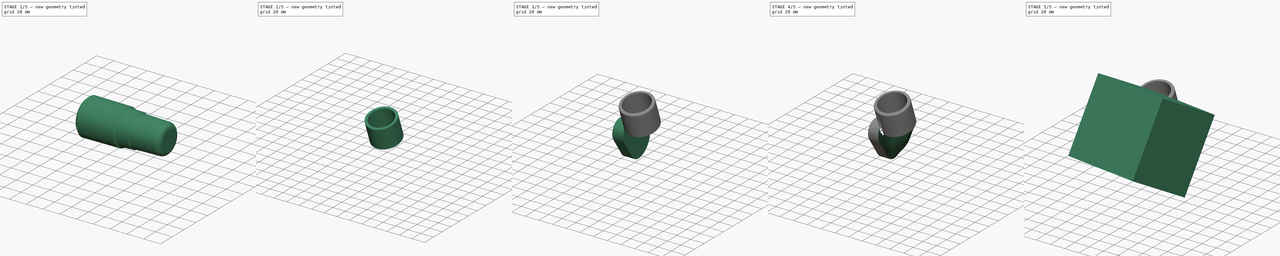
[diagram: build sequence overview — one tinted view per stage of 5, left to right]
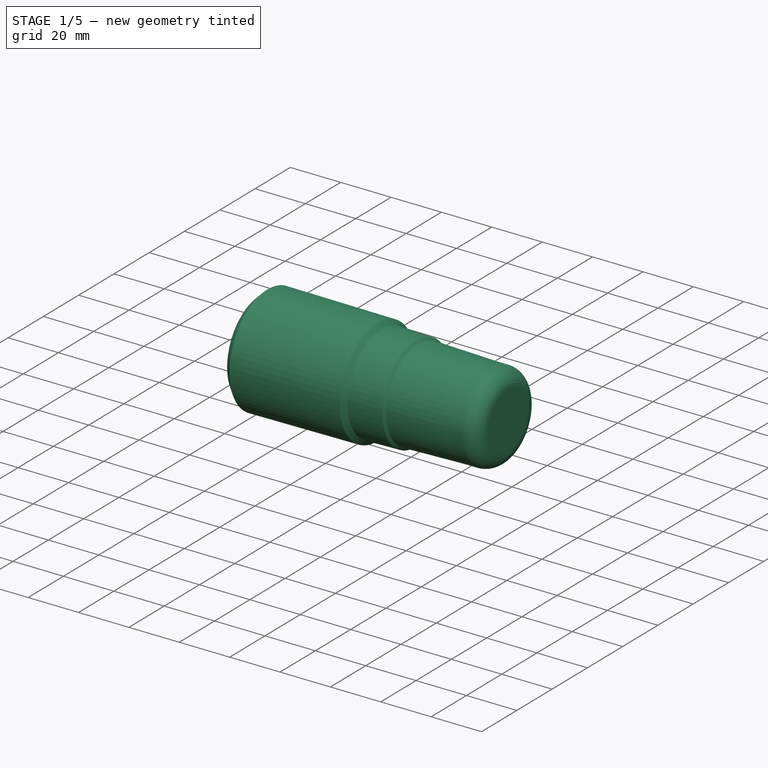
[diagram: stage 1 of 5 — iso view after this stage's code; geometry added in this stage tinted green]
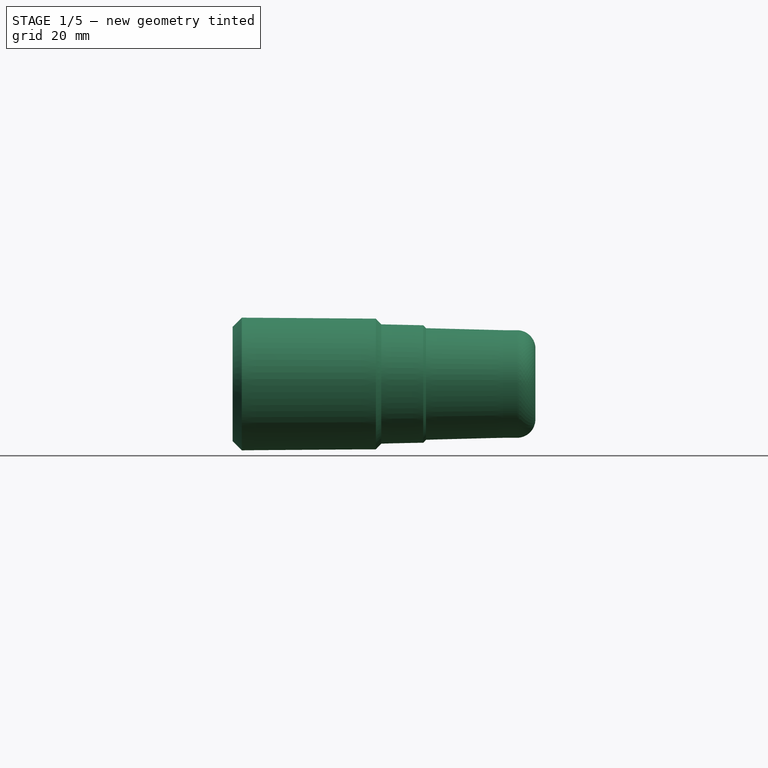
[diagram: stage 1 of 5 — front view after this stage's code; geometry added in this stage tinted green]
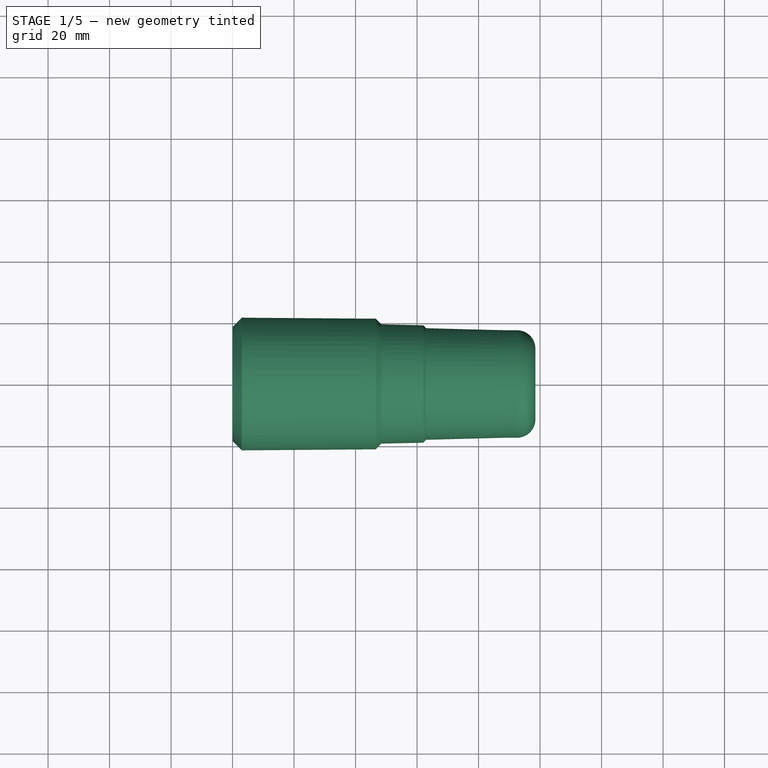
[diagram: stage 1 of 5 — top view after this stage's code; geometry added in this stage tinted green]
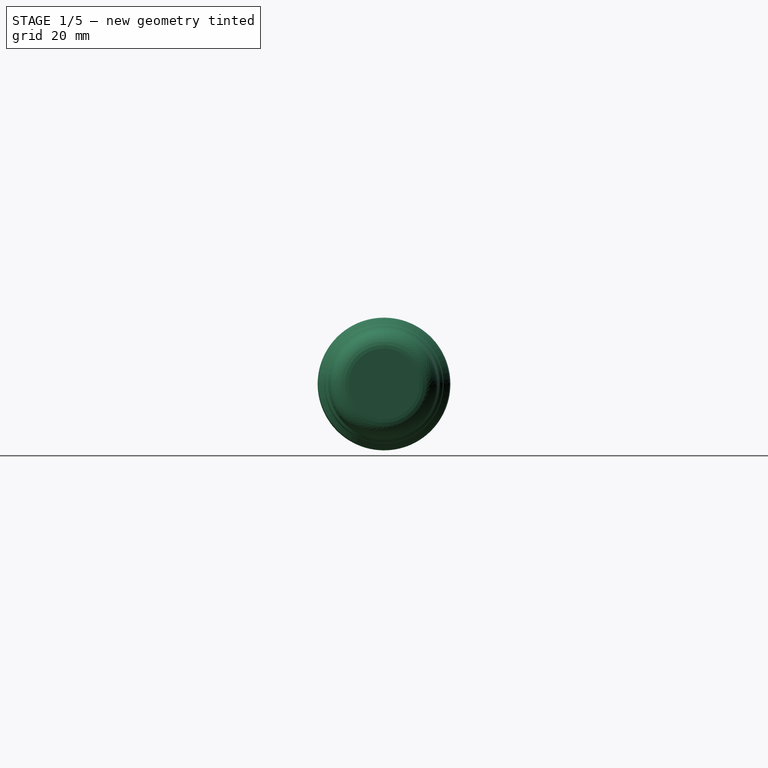
[diagram: stage 1 of 5 — right view after this stage's code; geometry added in this stage tinted green]
FCSTD DOCUMENT  (FreeCAD 0.19R)
Label: PowerPlaneAdapter
License: Creative Commons Attribution-NonCommercial
LicenseURL: http://creativecommons.org/licenses/by-nc/4.0/
objects: Sketcher::SketchObject×26, Surface::Filling×24, Part::Cut×4, App::DocumentObjectGroup×4, Part::Sweep×3, PartDesign::Body×3, Part::Extrusion×2, Part::FeaturePython×2, Part::Fillet×2, PartDesign::Plane×1, Part::Offset2D×1, PartDesign::Revolution×1, PartDesign::Chamfer×1, Part::Compound×1, Part::Offset×1, Part::Box×1, Part::Refine×1, Part::Fuse×1, Part::MultiFuse×1, PartDesign::FeatureBase×1, +1 more types
note: 80 computed .brp shape members not serialized (recipe doc carries the construction recipe); baked Part::Feature solids carry a one-line shape summary decoded from their .brp

FEATURE [Part::Offset2D] Offset2D001
  Fill = false
  Intersection = false
  Join = 0
  Mode = 1
  SelfIntersection = false
  Source = -> Sketch004
  Value = -4
FEATURE [Part::Sweep] Sweep  label="DuctKnockout"
  Frenet = false
  Sections = -> [Offset2D001,Sketch]
  Solid = true
  Spine = -> Sketch003 [Edge1]
  Transition = 1
FEATURE [Sketcher::SketchObject] Sketch006  label="PlaneOutletOffset001"
  FullyConstrained = false
  Placement = pos=(0,0,0) rot=(0.57735,0.57735,0.57735;2.0944rad)
  sketch-geometry (6):
    g0: ArcOfCircle CenterX=12.0935 CenterY=36.2169 CenterZ=0 NormalX=0 NormalY=0 NormalZ=1 AngleXU=0 Radius=15.8794 StartAngle=1.2916 EndAngle=3.73589
    g1: LineSegment StartX=16.4697 StartY=51.4814 StartZ=0 EndX=33.5567 EndY=46.5827 EndZ=0
    g2: ArcOfCircle CenterX=28.4258 CenterY=11.7277 CenterZ=0 NormalX=0 NormalY=0 NormalZ=1 AngleXU=0 Radius=15.6991 StartAngle=3.73589 EndAngle=4.91023
    g3: LineSegment StartX=15.4185 StartY=2.93727 StartZ=0 EndX=-1.06323 EndY=27.3255 EndZ=0
    g4: ArcOfCircle CenterX=26.4252 CenterY=21.7074 CenterZ=0 NormalX=0 NormalY=0 NormalZ=1 AngleXU=0 Radius=25.8774 StartAngle=6.21858 EndAngle=7.57478
    g5: ArcOfCircle CenterX=26.4252 CenterY=21.7074 CenterZ=0 NormalX=0 NormalY=0 NormalZ=1 AngleXU=0 Radius=25.8774 StartAngle=4.91023 EndAngle=6.21858
  constraints (15):
    c: DistanceX(g0) = 12.0935
    c: DistanceY(g0) = 36.2169
    c: DistanceX(g2) = 28.4258
    c: DistanceY(g2) = 11.7277
    c: Tangent(g3,g2) = 1.5708
    c: Tangent(g3,g0) = 1.5708
    c: Tangent(g1,g0) = 1.5708
    c: DistanceX(g0) = 16.4697
    c: DistanceY(g0) = 51.4814
    c: DistanceX(g1) = 33.5567
    c: DistanceX(g0,g2) = 16.4817
    c: Coincident(g4,g1)
    c: Coincident(g5,g4)
    c: Coincident(g5,g2)
    c: Coincident(g5,g4)
FEATURE [PartDesign::Body] Body
  Group = -> [Sketch,Sketch001,Sketch002,Sketch003,DatumPlane,Sketch006]
  Origin = -> Origin
FEATURE [Part::Sweep] Sweep001
  Frenet = false
  Sections = -> [Sketch004,Sketch006]
  Solid = true
  Spine = -> Sketch003 [Edge1]
  Transition = 1
FEATURE [Part::Cut] Cut
  Base = -> Sweep001
  Tool = -> Sweep
FEATURE [Sketcher::SketchObject] Sketch007
  FullyConstrained = false
  MapMode = 5
  Placement = pos=(0,0,0) rot=(1,0,0;1.5708rad)
  Support = -> [XZ_Plane001]
  sketch-geometry (12):
    g0: LineSegment StartX=0 StartY=21.6 StartZ=0 EndX=46.5987 EndY=21.25 EndZ=0
    g1: LineSegment StartX=46.5987 StartY=21.25 StartZ=0 EndX=48.3691 EndY=19.4 EndZ=0
    g2: LineSegment StartX=48.3691 StartY=19.4 StartZ=0 EndX=62.0091 EndY=19.1 EndZ=0
    g3: LineSegment StartX=62.0091 StartY=19.1 StartZ=0 EndX=62.9111 EndY=18.15 EndZ=0
    g4: LineSegment StartX=62.9111 StartY=18.15 StartZ=0 EndX=87.989 EndY=17.5 EndZ=0
    g5: LineSegment StartX=98.5 StartY=0 StartZ=0 EndX=0 EndY=0 EndZ=0
    g6: LineSegment StartX=0 StartY=0 StartZ=0 EndX=0 EndY=21.6 EndZ=0
    g7: LineSegment StartX=46.5987 StartY=21.25 StartZ=0 EndX=48.3691 EndY=19.4 EndZ=0
    g8: LineSegment StartX=62.0091 StartY=19.1 StartZ=0 EndX=62.9111 EndY=18.15 EndZ=0
    g9: LineSegment StartX=87.989 StartY=17.5 StartZ=0 EndX=92.5 EndY=17.5 EndZ=0
    g10: ArcOfCircle CenterX=92.5 CenterY=11.5 CenterZ=0 NormalX=0 NormalY=0 NormalZ=1 AngleXU=0 Radius=6 StartAngle=1.66667e-07 EndAngle=1.5708
    g11: LineSegment StartX=98.5 StartY=11.5 StartZ=0 EndX=98.5 EndY=0 EndZ=0
  constraints (34):
    c: PointOnObject(g0,g-2)
    c: Coincident(g0,g1)
    c: Coincident(g1,g2)
    c: Coincident(g3,g4)
    c: Coincident(g5,g6)
    c: Coincident(g6,g0)
    c: PointOnObject(g5,g-2)
    c: Distance(g0) = 46.6
    c: Distance(g-1,g0) = 21.6
    c: DistanceY(g0) = 21.25
    c: DistanceY(g1) = 19.4
    c: DistanceY(g2) = 19.1
    c: DistanceY(g3) = 18.15
    c: DistanceY(g4) = 17.5
    c: Horizontal(g5)
    c: PointOnObject(g7,g0)
    c: PointOnObject(g7,g2)
    c: Angle(g2,g7) = 2.35619
    c: Distance(g5) = 98.5
    c: Angle(g4,g8) = 2.35619
    c: DistanceY(g1,g7) = 1.85
    c: Coincident(g2,g3)
    c: Coincident(g2,g8)
    c: DistanceX(g2,g2) = 13.64
    c: Coincident(g3,g8)
    c: Distance(g3) = 1.31
    c: Angle(g2,g1) = 2.35619
    c: Horizontal(g9)
    c: Tangent(g10,g9) = 1.5708
    c: PointOnObject(g5,g-1)
    c: Coincident(g11,g10)
    c: Coincident(g11,g5)
    c: Vertical(g11)
    c: Coincident(g4,g9)
FEATURE [PartDesign::Revolution] Revolution
  Angle = 360
  Axis = (1,0,0)
  Base = (0,0,0)
  Placement = pos=(0,0,0) rot=(1,0,0;1.5708rad)
  Profile = -> Sketch007
  ReferenceAxis = -> X_Axis001
FEATURE [PartDesign::Chamfer] Chamfer
  Angle = 45
  Base = -> Revolution [Edge2]
  BaseFeature = -> Revolution
  ChamferType = 0
  FlipDirection = false
  Placement = pos=(0,0,0) rot=(1,0,0;1.5708rad)
  Size = 3
  Size2 = 1
  SupportTransform = false
FEATURE [PartDesign::Body] Body001  label="Nozzle"
  Group = -> [Sketch007,Revolution,Chamfer]
  Origin = -> Origin001
  Tip = -> Chamfer
FEATURE [Part::Compound] Compound
  Links = -> [Body001]
  Placement = pos=(5.8e-15,0,0) rot=(0,0,1;0rad)
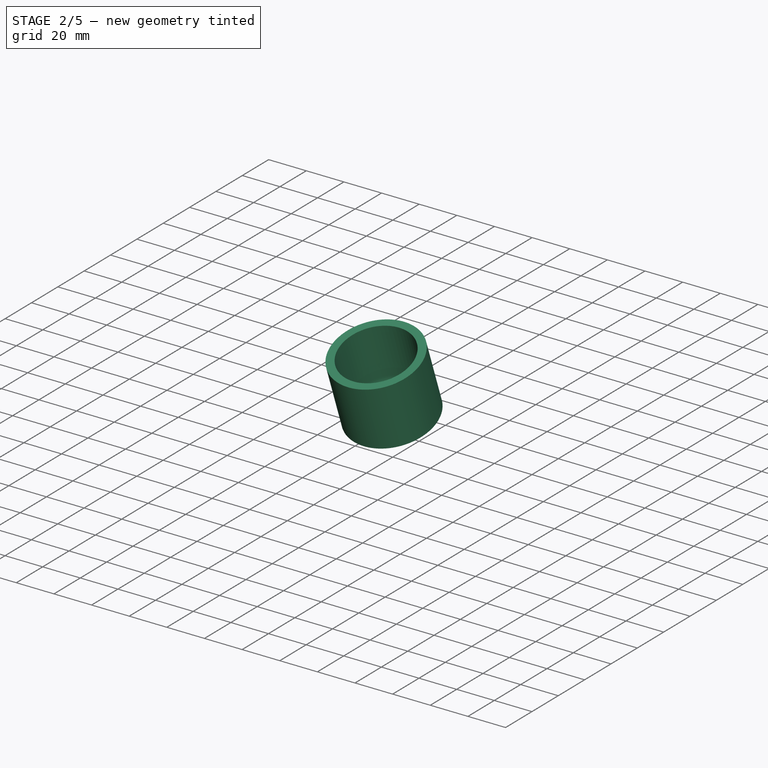
[diagram: stage 2 of 5 — iso view after this stage's code; geometry added in this stage tinted green]
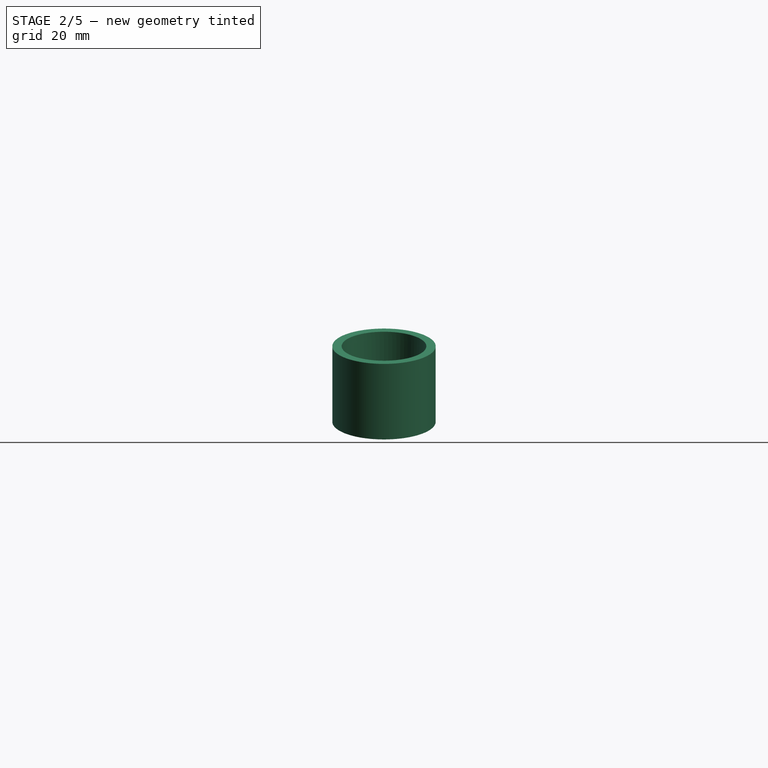
[diagram: stage 2 of 5 — front view after this stage's code; geometry added in this stage tinted green]
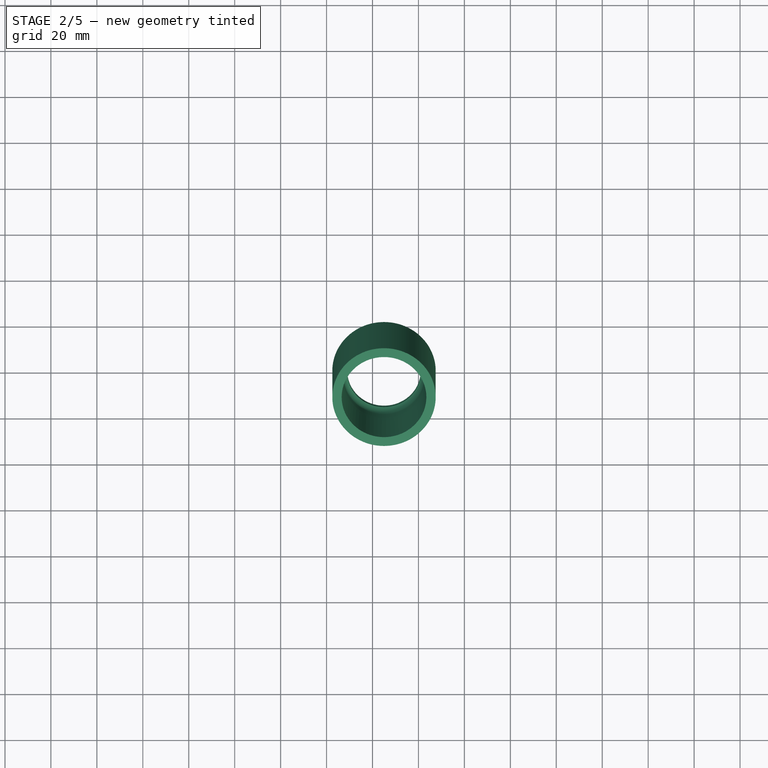
[diagram: stage 2 of 5 — top view after this stage's code; geometry added in this stage tinted green]
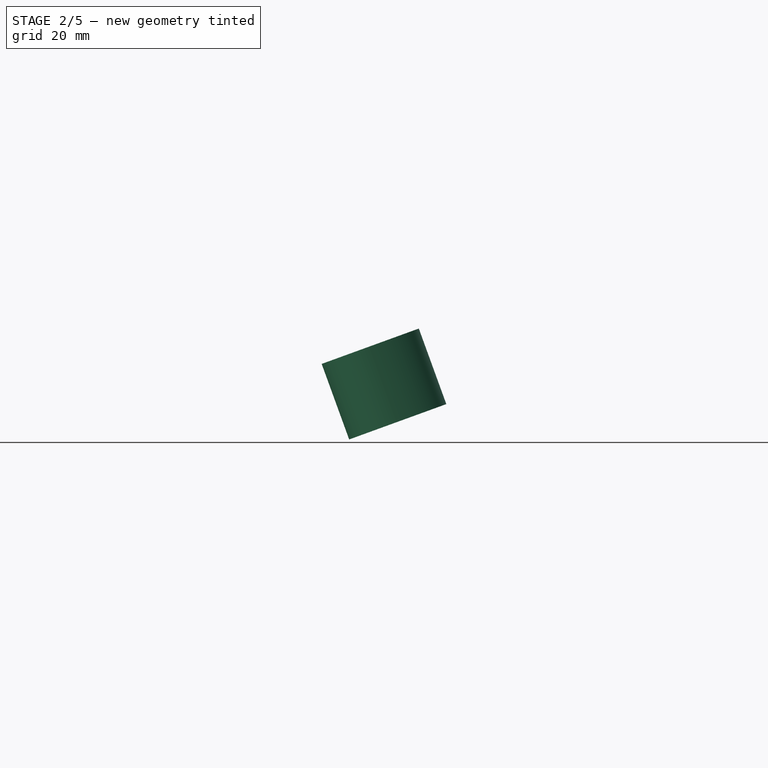
[diagram: stage 2 of 5 — right view after this stage's code; geometry added in this stage tinted green]
FEATURE [Part::Offset] Offset  label="Nozzle001"
  Fill = false
  Intersection = false
  Join = 0
  Mode = 0
  Placement = pos=(25,-33,151) rot=(-0.497543,0.497543,0.710565;1.90603rad)
  SelfIntersection = false
  Source = -> Compound
  Value = 0.3
FEATURE [Sketcher::SketchObject] Sketch023
  ExternalGeometry = -> [Sketch011,Sketch006]
  FullyConstrained = true
  MapMode = 13
  Placement = pos=(9.40708,4.24293,55.2868) rot=(0.627475,-0.373507,-0.683204;1.43342rad)
  Support = -> [Sketch011,Sketch006]
  sketch-geometry (1):
    g0: LineSegment StartX=-10.3026 StartY=9.92339 StartZ=0 EndX=-15.2326 EndY=-4.52051 EndZ=0
  constraints (2):
    c: Coincident(g0,g-3)
    c: Coincident(g0,g-4)
FEATURE [Sketcher::SketchObject] Sketch024
  ExternalGeometry = -> [Sketch006,Sketch011]
  FullyConstrained = false
  MapMode = 13
  Placement = pos=(1.07374,3.62465,45.0092) rot=(0.608798,-0.533828,-0.58685;1.96199rad)
  Support = -> [Sketch006,Sketch011]
  sketch-geometry (1):
    g0: ArcOfCircle CenterX=-17.3144 CenterY=-0.0915195 CenterZ=0 NormalX=0 NormalY=0 NormalZ=1 AngleXU=0 Radius=28.0797 StartAngle=5.60249 EndAngle=6.69942
  constraints (2):
    c: Coincident(g0,g-4)
    c: Coincident(g0,g-3)
FEATURE [Sketcher::SketchObject] Sketch025
  ExternalGeometry = -> [Sketch011,Sketch006]
  FullyConstrained = false
  MapMode = 13
  Placement = pos=(6.3391,16.0244,24.5709) rot=(0.572295,0.656589,0.491293;2.3324rad)
  Support = -> [Sketch011,Sketch006]
  sketch-geometry (1):
    g0: ArcOfCircle CenterX=415.576 CenterY=327.059 CenterZ=0 NormalX=0 NormalY=0 NormalZ=1 AngleXU=0 Radius=542.871 StartAngle=3.72661 EndAngle=3.84131
  constraints (2):
    c: Coincident(g0,g-3)
    c: Coincident(g0,g-4)
FEATURE [Sketcher::SketchObject] Sketch026
  ExternalGeometry = -> [Sketch011,Sketch006]
  FullyConstrained = false
  MapMode = 13
  Placement = pos=(13.5987,23.1634,23.016) rot=(0.472884,0.717491,0.511457;2.49133rad)
  Support = -> [Sketch011,Sketch006]
  sketch-geometry (3):
    g0: ArcOfParabola CenterX=-26.8207 CenterY=5.32491 CenterZ=0 NormalX=0 NormalY=0 NormalZ=1 Focal=79.8273 AngleXU=0.711383 StartAngle=-51.4326 EndAngle=31.6829
    g1: GeomPoint X=33.6453 Y=57.4427 Z=0
    g2: LineSegment StartX=-26.8207 StartY=5.32491 StartZ=0 EndX=33.6453 EndY=57.4427 EndZ=0
  constraints (5):
    c: InternalAlignment(g1,g0)
    c: Coincident(g1,g2)
    c: Coincident(g0,g2)
    c: Coincident(g0,g-4)
    c: Coincident(g0,g-3)
FEATURE [Sketcher::SketchObject] Sketch027
  ExternalGeometry = -> [Sketch011,Sketch006]
  FullyConstrained = false
  MapMode = 13
  Placement = pos=(15.5929,24.5943,27.6901) rot=(0.542406,-0.38364,-0.747406;1.51566rad)
  Support = -> [Sketch011,Sketch006]
  sketch-geometry (1):
    g0: ArcOfCircle CenterX=286.795 CenterY=-330.511 CenterZ=0 NormalX=0 NormalY=0 NormalZ=1 AngleXU=0 Radius=451.956 StartAngle=2.18099 EndAngle=2.35146
  constraints (2):
    c: Coincident(g0,g-3)
    c: Coincident(g0,g-4)
FEATURE [Sketcher::SketchObject] Sketch028
  ExternalGeometry = -> [Sketch011,Sketch006]
  FullyConstrained = true
  MapMode = 13
  Placement = pos=(10.3276,28.7484,36.1652) rot=(0.144996,0.712611,0.686412;2.86406rad)
  Support = -> [Sketch006,Sketch011]
  sketch-geometry (1):
    g0: LineSegment StartX=-21.9714 StartY=29.4335 StartZ=0 EndX=11.3853 EndY=10.4248 EndZ=0
  constraints (2):
    c: Coincident(g0,g-3)
    c: Coincident(g0,g-4)
FEATURE [Surface::Filling] Surface011
  Anisotropy = false
  BoundaryEdges = -> [Sketch023,Sketch011,Sketch024,Sketch006]
  BoundaryOrder = [0,0,0,0]
  Degree = 3
  Iterations = 2
  MaximumDegree = 8
  MaximumSegments = 9
  PointsOnCurve = 15
  TolAngular = 0.01
  TolCurvature = 0.1
  Tolerance2d = 1e-05
  Tolerance3d = 0.0001
FEATURE [Surface::Filling] Surface012
  Anisotropy = false
  BoundaryEdges = -> [Sketch011,Sketch023,Sketch006,Sketch028]
  BoundaryOrder = [0,0,0,0]
  Degree = 3
  Iterations = 2
  MaximumDegree = 8
  MaximumSegments = 9
  PointsOnCurve = 15
  TolAngular = 0.01
  TolCurvature = 0.1
  Tolerance2d = 1e-05
  Tolerance3d = 0.0001
FEATURE [Surface::Filling] Surface013
  Anisotropy = false
  BoundaryEdges = -> [Sketch011,Surface012,Sketch006,Sketch027]
  BoundaryOrder = [0,0,0,0]
  Degree = 3
  Iterations = 2
  MaximumDegree = 8
  MaximumSegments = 9
  PointsOnCurve = 15
  TolAngular = 0.01
  TolCurvature = 0.1
  Tolerance2d = 1e-05
  Tolerance3d = 0.0001
FEATURE [Surface::Filling] Surface014
  Anisotropy = false
  BoundaryEdges = -> [Sketch011,Sketch027,Sketch006,Sketch026]
  BoundaryOrder = [0,0,0,0]
  Degree = 3
  Iterations = 2
  MaximumDegree = 8
  MaximumSegments = 9
  PointsOnCurve = 15
  TolAngular = 0.01
  TolCurvature = 0.1
  Tolerance2d = 1e-05
  Tolerance3d = 0.0001
FEATURE [Surface::Filling] Surface015
  Anisotropy = false
  BoundaryEdges = -> [Sketch006,Surface014,Sketch011,Sketch025]
  BoundaryOrder = [0,0,0,0]
  Degree = 3
  Iterations = 2
  MaximumDegree = 8
  MaximumSegments = 9
  PointsOnCurve = 15
  TolAngular = 0.01
  TolCurvature = 0.1
  Tolerance2d = 1e-05
  Tolerance3d = 0.0001
FEATURE [Surface::Filling] Surface016
  Anisotropy = false
  BoundaryEdges = -> [Sketch024,Sketch011,Sketch025,Sketch006]
  BoundaryOrder = [0,0,0,0]
  Degree = 3
  Iterations = 2
  MaximumDegree = 8
  MaximumSegments = 9
  PointsOnCurve = 15
  TolAngular = 0.01
  TolCurvature = 0.1
  Tolerance2d = 1e-05
  Tolerance3d = 0.0001
FEATURE [Surface::Filling] Surface
  Anisotropy = false
  BoundaryEdges = -> [Surface001,Sketch,Sketch018,Sketch012]
  BoundaryOrder = [0,0,0,0]
  Degree = 3
  Iterations = 2
  MaximumDegree = 8
  MaximumSegments = 9
  PointsOnCurve = 15
  TolAngular = 0.01
  TolCurvature = 0.1
  Tolerance2d = 1e-05
  Tolerance3d = 0.0001
FEATURE [Surface::Filling] Surface017
  Anisotropy = false
  BoundaryEdges = -> [Sketch,Surface,Sketch012,Sketch019]
  BoundaryOrder = [0,0,0,0]
  Degree = 3
  Iterations = 2
  MaximumDegree = 8
  MaximumSegments = 9
  PointsOnCurve = 15
  TolAngular = 0.01
  TolCurvature = 0.1
  Tolerance2d = 1e-05
  Tolerance3d = 0.0001
FEATURE [App::DocumentObjectGroup] Group002  label="ShortyOuterSurfaces"
  Group = -> [Sketch023,Sketch024,Sketch025,Sketch026,Sketch027,Sketch028,Surface011,Surface012,Surface013,Surface014,Surface015,Surface016]
FEATURE [Sketcher::SketchObject] Sketch029
  ExternalGeometry = -> [Sketch006,Sketch]
  FullyConstrained = true
  MapMode = 2
  Placement = pos=(0,0,0) rot=(0.57735,0.57735,0.57735;2.0944rad)
  Support = -> [Sketch006]
  sketch-geometry (6):
    g0: LineSegment StartX=-1.06323 StartY=27.3255 StartZ=0 EndX=2.0259 EndY=29.8219 EndZ=0
    g1: LineSegment StartX=15.4185 StartY=2.93727 StartZ=0 EndX=18.6177 EndY=5.22356 EndZ=0
    g2: LineSegment StartX=31.5114 StartY=-3.66518 StartZ=0 EndX=31.0043 EndY=0.280379 EndZ=0
    g3: LineSegment StartX=48.2491 StartY=21.8405 StartZ=0 EndX=52.2486 EndY=20.0369 EndZ=0
    g4: LineSegment StartX=32.3132 StartY=42.9081 StartZ=0 EndX=33.5567 EndY=46.5827 EndZ=0
    g5: LineSegment StartX=15.1163 StartY=47.8393 StartZ=0 EndX=16.4697 EndY=51.4814 EndZ=0
  constraints (12):
    c: Coincident(g0,g-3)
    c: Coincident(g0,g-4)
    c: Coincident(g1,g-14)
    c: Coincident(g1,g-13)
    c: Coincident(g2,g-11)
    c: Coincident(g2,g-12)
    c: Coincident(g3,g-9)
    c: Coincident(g3,g-10)
    c: Coincident(g4,g-8)
    c: Coincident(g4,g-7)
    c: Coincident(g5,g-5)
    c: Coincident(g5,g-6)
FEATURE [Sketcher::SketchObject] Sketch030
  ExternalGeometry = -> [Sketch012,Sketch011]
  FullyConstrained = true
  MapMode = 2
  Placement = pos=(25,0.79159,58.1584) rot=(1,0,0;3.49066rad)
  Support = -> [Sketch012]
  sketch-geometry (6):
    g0: LineSegment StartX=4.35921 StartY=-15.4446 StartZ=0 EndX=5.98269 EndY=-21.6938 EndZ=0
    g1: LineSegment StartX=15.555 StartY=-3.94711 StartZ=0 EndX=21.7788 EndY=-5.66576 EndZ=0
    g2: LineSegment StartX=11.1958 StartY=11.4975 StartZ=0 EndX=15.7961 EndY=16.0281 EndZ=0
    g3: LineSegment StartX=-4.35921 StartY=15.4446 StartZ=0 EndX=-5.98269 EndY=21.6938 EndZ=0
    g4: LineSegment StartX=-15.555 StartY=3.94711 StartZ=0 EndX=-21.7788 EndY=5.66576 EndZ=0
    g5: LineSegment StartX=-11.1958 StartY=-11.4975 StartZ=0 EndX=-15.7961 EndY=-16.0281 EndZ=0
  constraints (12):
    c: Coincident(g0,g-14)
    c: Coincident(g0,g-13)
    c: Coincident(g1,g-11)
    c: Coincident(g1,g-12)
    c: Coincident(g2,g-10)
    c: Coincident(g2,g-9)
    c: Coincident(g3,g-7)
    c: Coincident(g3,g-8)
    c: Coincident(g4,g-6)
    c: Coincident(g4,g-5)
    c: Coincident(g5,g-3)
    c: Coincident(g5,g-4)
FEATURE [App::DocumentObjectGroup] Group001  label="ShortyKnockoutSurfaces"
  Group = -> [Surface001,Surface002,Surface003,Surface004,Sketch012,Sketch017,Sketch018,Sketch019,Sketch020,Sketch021,Sketch022,Surface,Surface017,Sketch030]
FEATURE [Surface::Filling] Surface018
  Anisotropy = false
  BoundaryEdges = -> [Sketch030,Sketch012,Sketch011]
  BoundaryOrder = [0,0,0,0]
  Degree = 3
  Iterations = 2
  MaximumDegree = 8
  MaximumSegments = 9
  PointsOnCurve = 15
  TolAngular = 0.01
  TolCurvature = 0.1
  Tolerance2d = 1e-05
  Tolerance3d = 0.0001
FEATURE [Surface::Filling] Surface019
  Anisotropy = false
  BoundaryEdges = -> [Sketch012,Sketch030,Sketch011]
  BoundaryOrder = [0,0,0,0]
  Degree = 3
  Iterations = 2
  MaximumDegree = 8
  MaximumSegments = 9
  PointsOnCurve = 15
  TolAngular = 0.01
  TolCurvature = 0.1
  Tolerance2d = 1e-05
  Tolerance3d = 0.0001
FEATURE [Surface::Filling] Surface020
  Anisotropy = false
  BoundaryEdges = -> [Sketch012,Sketch030,Sketch011]
  BoundaryOrder = [0,0,0,0]
  Degree = 3
  Iterations = 2
  MaximumDegree = 8
  MaximumSegments = 9
  PointsOnCurve = 15
  TolAngular = 0.01
  TolCurvature = 0.1
  Tolerance2d = 1e-05
  Tolerance3d = 0.0001
FEATURE [Surface::Filling] Surface021
  Anisotropy = false
  BoundaryEdges = -> [Sketch012,Sketch030,Sketch011]
  BoundaryOrder = [0,0,0,0]
  Degree = 3
  Iterations = 2
  MaximumDegree = 8
  MaximumSegments = 9
  PointsOnCurve = 15
  TolAngular = 0.01
  TolCurvature = 0.1
  Tolerance2d = 1e-05
  Tolerance3d = 0.0001
FEATURE [Surface::Filling] Surface022
  Anisotropy = false
  BoundaryEdges = -> [Sketch030,Sketch011,Sketch012]
  BoundaryOrder = [0,0,0,0]
  Degree = 3
  Iterations = 2
  MaximumDegree = 8
  MaximumSegments = 9
  PointsOnCurve = 15
  TolAngular = 0.01
  TolCurvature = 0.1
  Tolerance2d = 1e-05
  Tolerance3d = 0.0001
FEATURE [Surface::Filling] Surface023
  Anisotropy = false
  BoundaryEdges = -> [Surface022,Sketch012,Sketch030,Sketch011]
  BoundaryOrder = [0,0,0,0]
  Degree = 3
  Iterations = 2
  MaximumDegree = 8
  MaximumSegments = 9
  PointsOnCurve = 15
  TolAngular = 0.01
  TolCurvature = 0.1
  Tolerance2d = 1e-05
  Tolerance3d = 0.0001
FEATURE [Surface::Filling] Surface024
  Anisotropy = false
  BoundaryEdges = -> [Sketch,Sketch029,Sketch006]
  BoundaryOrder = [0,0,0,0]
  Degree = 3
  Iterations = 2
  MaximumDegree = 8
  MaximumSegments = 9
  PointsOnCurve = 15
  TolAngular = 0.01
  TolCurvature = 0.1
  Tolerance2d = 1e-05
  Tolerance3d = 0.0001
FEATURE [Surface::Filling] Surface025
  Anisotropy = false
  BoundaryEdges = -> [Sketch029,Sketch006,Sketch]
  BoundaryOrder = [0,0,0,0]
  Degree = 3
  Iterations = 2
  MaximumDegree = 8
  MaximumSegments = 9
  PointsOnCurve = 15
  TolAngular = 0.01
  TolCurvature = 0.1
  Tolerance2d = 1e-05
  Tolerance3d = 0.0001
FEATURE [Surface::Filling] Surface026
  Anisotropy = false
  BoundaryEdges = -> [Sketch029,Sketch006,Sketch]
  BoundaryOrder = [0,0,0,0]
  Degree = 3
  Iterations = 2
  MaximumDegree = 8
  MaximumSegments = 9
  PointsOnCurve = 15
  TolAngular = 0.01
  TolCurvature = 0.1
  Tolerance2d = 1e-05
  Tolerance3d = 0.0001
FEATURE [Surface::Filling] Surface027
  Anisotropy = false
  BoundaryEdges = -> [Surface026,Sketch006,Sketch029,Sketch]
  BoundaryOrder = [0,0,0,0]
  Degree = 3
  Iterations = 2
  MaximumDegree = 8
  MaximumSegments = 9
  PointsOnCurve = 15
  TolAngular = 0.01
  TolCurvature = 0.1
  Tolerance2d = 1e-05
  Tolerance3d = 0.0001
FEATURE [Surface::Filling] Surface028
  Anisotropy = false
  BoundaryEdges = -> [Sketch029,Sketch006,Sketch]
  BoundaryOrder = [0,0,0,0]
  Degree = 3
  Iterations = 2
  MaximumDegree = 8
  MaximumSegments = 9
  PointsOnCurve = 15
  TolAngular = 0.01
  TolCurvature = 0.1
  Tolerance2d = 1e-05
  Tolerance3d = 0.0001
FEATURE [Surface::Filling] Surface029
  Anisotropy = false
  BoundaryEdges = -> [Surface028,Sketch,Sketch029,Sketch006]
  BoundaryOrder = [0,0,0,0]
  Degree = 3
  Iterations = 2
  MaximumDegree = 8
  MaximumSegments = 9
  PointsOnCurve = 15
  TolAngular = 0.01
  TolCurvature = 0.1
  Tolerance2d = 1e-05
  Tolerance3d = 0.0001
FEATURE [App::DocumentObjectGroup] Group003  label="ShortyFaceSurfaces"
  Group = -> [Sketch029,Surface018,Surface019,Surface020,Surface021,Surface022,Surface023,Surface024,Surface025,Surface026,Surface027,Surface028,Surface029]
FEATURE [Part::FeaturePython] Solid  label="ShortyV2"  # WARN: FeaturePython — macro-defined, semantics opaque (R4)
  Faces = -> [Surface001,Surface002,Surface003,Surface004,Surface,Surface017,Surface011,Surface012,Surface013,Surface014,Surface015,Surface016,Surface018,Surface019,Surface020,Surface021,Surface022,Surface023,Surface024,Surface025,Surface026,Surface027,Surface028,Surface029]
FEATURE [Part::FeaturePython] Tube  # WARN: FeaturePython — macro-defined, semantics opaque (R4)
  AttacherType = Attacher::AttachEngine3D
  Height = 35
  InnerRadius = 16
  MapMode = 11
  OuterRadius = 22.5
  Placement = pos=(25,0.79159,58.1584) rot=(0.217854,0.169477,-0.961154;1.36087rad)
  Support = -> [Solid]
FEATURE [Part::Cut] Cut003
  Base = -> Tube
  Tool = -> Offset
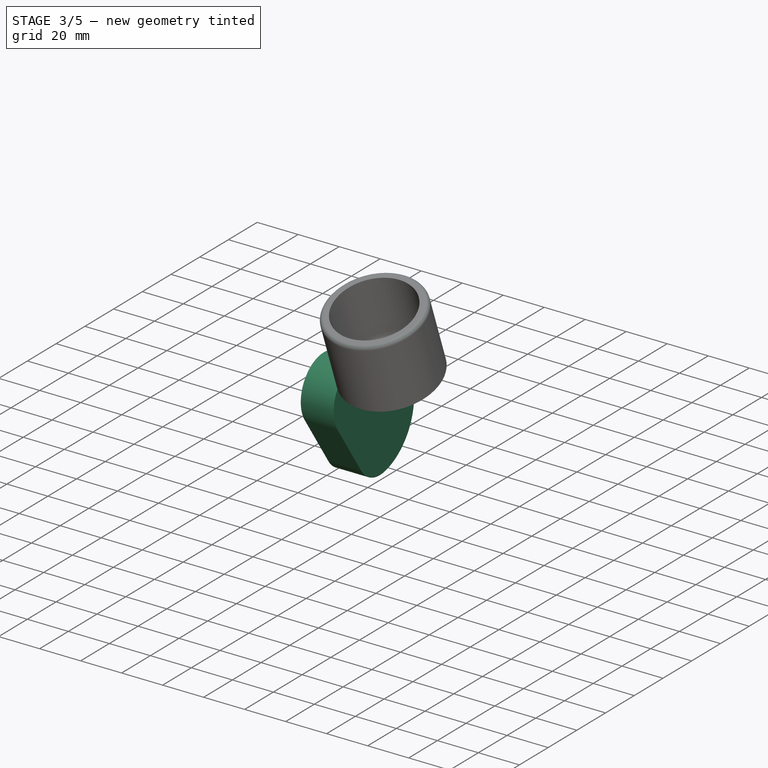
[diagram: stage 3 of 5 — iso view after this stage's code; geometry added in this stage tinted green]
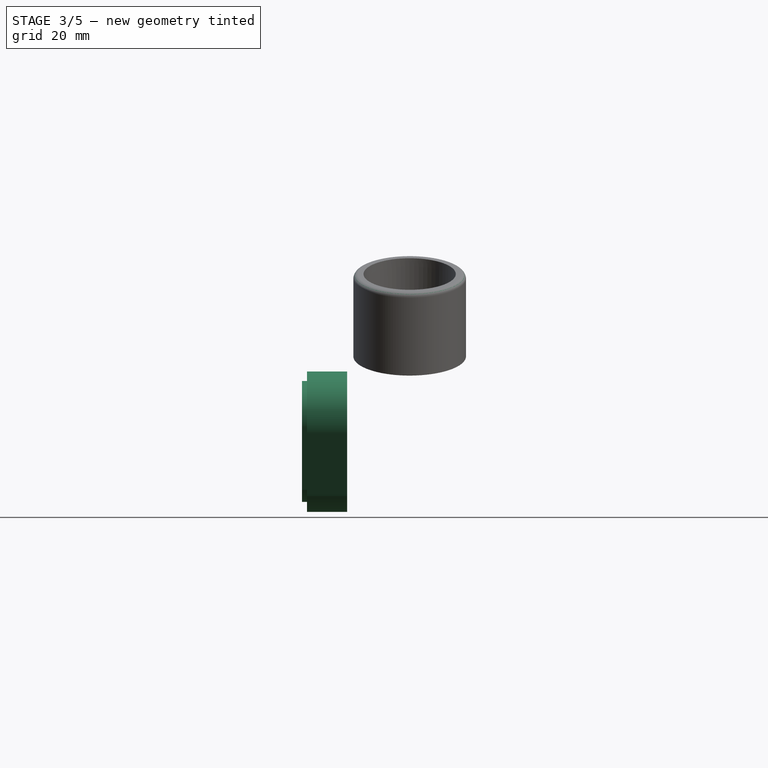
[diagram: stage 3 of 5 — front view after this stage's code; geometry added in this stage tinted green]
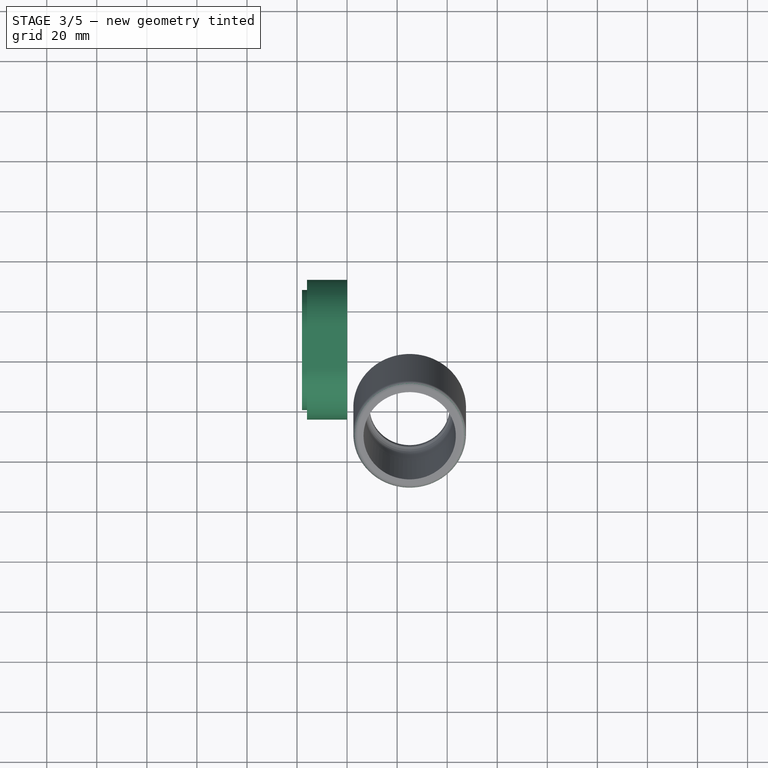
[diagram: stage 3 of 5 — top view after this stage's code; geometry added in this stage tinted green]
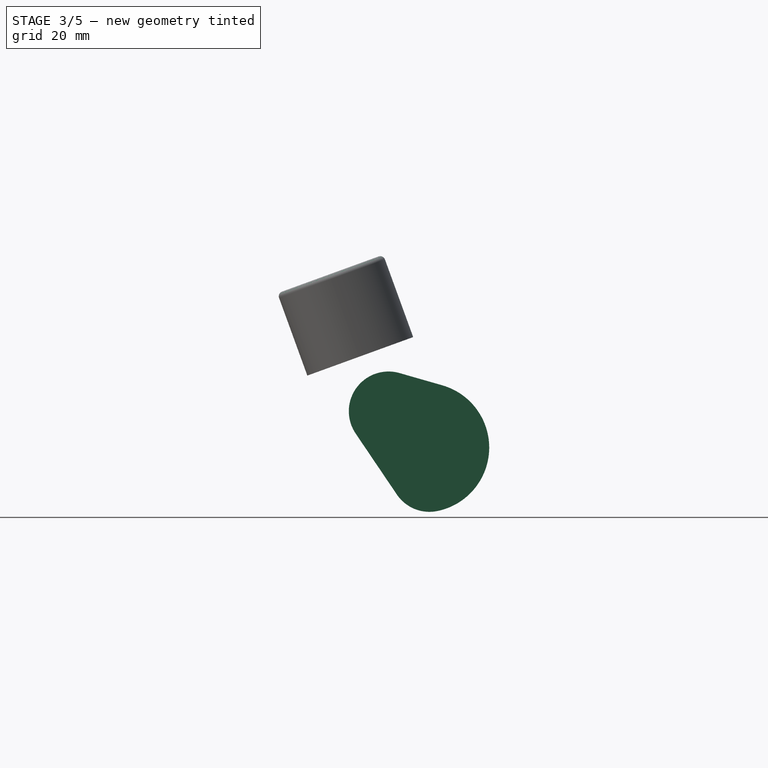
[diagram: stage 3 of 5 — right view after this stage's code; geometry added in this stage tinted green]
FEATURE [Sketcher::SketchObject] Sketch  label="Plane port"
  FullyConstrained = false
  Placement = pos=(0,0,0) rot=(0.57735,0.57735,0.57735;2.0944rad)
  sketch-geometry (9):
    g0: LineSegment StartX=2.0259 StartY=29.8219 StartZ=0 EndX=18.6177 EndY=5.22356 EndZ=0
    g1: LineSegment StartX=15.1163 StartY=47.8393 StartZ=0 EndX=32.3132 EndY=42.9081 EndZ=0
    g2: ArcOfCircle CenterX=11.85 CenterY=36.4483 CenterZ=0 NormalX=0 NormalY=0 NormalZ=1 AngleXU=0 Radius=11.85 StartAngle=1.29154 EndAngle=3.735
    g3: ArcOfCircle CenterX=28.4418 CenterY=11.85 CenterZ=0 NormalX=0 NormalY=0 NormalZ=1 AngleXU=0 Radius=11.85 StartAngle=3.735 EndAngle=4.93035
    g4: LineSegment StartX=36.0116 StartY=0 StartZ=0 EndX=57.3454 EndY=22.7801 EndZ=0
    g5: LineSegment StartX=17.639 StartY=59.9656 StartZ=0 EndX=-8.53164 EndY=32.0207 EndZ=0
    g6: LineSegment StartX=57.3454 StartY=22.7801 StartZ=0 EndX=17.639 EndY=59.9656 EndZ=0
    g7: ArcOfCircle CenterX=26.2492 CenterY=21.7604 CenterZ=0 NormalX=0 NormalY=0 NormalZ=1 AngleXU=0 Radius=22 StartAngle=0.00364284 EndAngle=1.29154
    g8: ArcOfCircle CenterX=26.2492 CenterY=21.7604 CenterZ=0 NormalX=0 NormalY=0 NormalZ=1 AngleXU=0 Radius=22 StartAngle=4.93025 EndAngle=6.28683
  constraints (23):
    c: Tangent(g2,g-2)
    c: Tangent(g3,g-1)
    c: Tangent(g3,g0) = -1.5708
    c: Tangent(g2,g0) = -1.5708
    c: Tangent(g2,g1) = 1.5708
    c: Radius(g2) = 11.85
    c: Radius(g3) = 11.85
    c: Angle(g0,g1) = 0.698132
    c: PointOnObject(g4,g-1)
    c: Tangent(g5,g2)
    c: Parallel(g5,g4)
    c: Coincident(g6,g4)
    c: Perpendicular(g4,g6)
    c: Coincident(g5,g6)
    c: Distance(g6) = 54.4
    c: Angle(g0,g-1) = 0.977384
    c: Coincident(g8,g7)
    c: Coincident(g8,g3)
    c: Radius(g8) = 22
    c: Tangent(g8,g7) = -1.5708
    c: Tangent(g7,g1) = 1.5708
    c: Distance(g5) = 38.286
    c: Distance(g4) = 31.21
FEATURE [Sketcher::SketchObject] Sketch001
  ExternalGeometry = -> [Sketch]
  FullyConstrained = true
  MapMode = 5
  Placement = pos=(0,0,0) rot=(0.57735,0.57735,0.57735;2.0944rad)
  Support = -> [YZ_Plane]
  sketch-geometry (1):
    g0: LineSegment StartX=48.2491 StartY=21.8405 StartZ=0 EndX=27.2865 EndY=23.0623 EndZ=0
  constraints (3):
    c: Coincident(g0,g-3)
    c: DistanceX(g0) = 27.2865
    c: DistanceY(g0) = 23.0623
FEATURE [Sketcher::SketchObject] Sketch002
  ExternalGeometry = -> [Sketch]
  FullyConstrained = true
  MapMode = 5
  Placement = pos=(0,0,0) rot=(1,0,0;1.5708rad)
  Support = -> [XZ_Plane]
  sketch-geometry (1):
    g0: LineSegment StartX=0 StartY=29.8219 StartZ=0 EndX=17 EndY=29.8219 EndZ=0
  constraints (3):
    c: Coincident(g0,g-3)
    c: Horizontal(g0)
    c: DistanceX(g0,g0) = 17
FEATURE [Sketcher::SketchObject] Sketch003  label="Sweep"
  ExternalGeometry = -> [Sketch001,Sketch]
  FullyConstrained = false
  MapMode = 5
  Placement = pos=(5.66667,15.3726,25.9803) rot=(0.28911,0.603588,0.743032;2.45775rad)
  sketch-geometry (4):
    g0: LineSegment StartX=3.352 StartY=22.3328 StartZ=0 EndX=15.7319 EndY=-26.2574 EndZ=0
    g1: ArcOfParabola CenterX=-48.0474 CenterY=7.51793 CenterZ=0 NormalX=0 NormalY=0 NormalZ=1 Focal=25.97 AngleXU=0.853066 StartAngle=-53.7922 EndAngle=39.9085
    g2: GeomPoint X=-30.9675 Y=27.0811 Z=0
    g3: LineSegment StartX=-48.0474 StartY=7.51793 StartZ=0 EndX=-30.9675 EndY=27.0811 EndZ=0
  constraints (10):
    c: Coincident(g0,g-5)
    c: Coincident(g0,g-4)
    c: InternalAlignment(g2,g1)
    c: Coincident(g2,g3)
    c: Coincident(g1,g3)
    c: PointOnObject(g1,g0)
    c: Distance(g1,g0) = 20
    c: DistanceX(g2) = -30.9675
    c: DistanceY(g2) = 27.0811
    c: Distance(g3) = 25.97
FEATURE [PartDesign::Plane] DatumPlane
  Length = 122.364
  MapMode = 1
  Placement = pos=(41.0692,-43.4538,70.3332) rot=(-0.146221,-0.146221,0.978386;1.59265rad)
  ResizeMode = 0
  Support = -> [Sketch003]
  Width = 147.235
FEATURE [Sketcher::SketchObject] Sketch004  label="Outlet"
  AttachmentOffset = pos=(0,0,0) rot=(0,0,1;3.14159rad)
  FullyConstrained = true
  MapMode = 5
  Placement = pos=(41.0692,-43.4538,70.3332) rot=(-0.146221,0.146221,0.978386;4.69054rad)
  Support = -> [DatumPlane]
  sketch-geometry (1):
    g0: Circle CenterX=0 CenterY=0 CenterZ=0 NormalX=0 NormalY=0 NormalZ=1 AngleXU=0 Radius=25
  constraints (2):
    c: Coincident(g0,g-1)
    c: Radius(g0) = 25
FEATURE [Part::Extrusion] Extrude  label="PortStub"
  Base = -> Sketch
  Dir = (1,0,0)
  DirMode = 0
  FaceMakerClass = Part::FaceMakerBullseye
  LengthFwd = 18
  LengthRev = 0
  Reversed = true
  Solid = true
  Symmetric = false
FEATURE [App::DocumentObjectGroup] Group  label="Version1"
  Group = -> [Cut001,Sweep002,Sketch009]
FEATURE [Sketcher::SketchObject] Sketch011
  FullyConstrained = false
  MapMode = 11
  Placement = pos=(25,0.79159,58.1584) rot=(1,0,0;3.49066rad)
  Support = -> [Offset]
  sketch-geometry (12):
    g0: LineSegment StartX=5.98269 StartY=-21.6938 StartZ=0 EndX=21.7788 EndY=-5.66576 EndZ=0
    g1: LineSegment StartX=21.7788 StartY=-5.66576 StartZ=0 EndX=15.7961 EndY=16.0281 EndZ=0
    g2: LineSegment StartX=15.7961 StartY=16.0281 StartZ=0 EndX=-5.98269 EndY=21.6938 EndZ=0
    g3: LineSegment StartX=-5.98269 StartY=21.6938 StartZ=0 EndX=-21.7788 EndY=5.66576 EndZ=0
    g4: LineSegment StartX=-21.7788 StartY=5.66576 StartZ=0 EndX=-15.7961 EndY=-16.0281 EndZ=0
    g5: LineSegment StartX=-15.7961 StartY=-16.0281 StartZ=0 EndX=5.98269 EndY=-21.6938 EndZ=0
    g6: ArcOfCircle CenterX=0 CenterY=0 CenterZ=0 NormalX=0 NormalY=0 NormalZ=1 AngleXU=0 Radius=22.5037 StartAngle=2.88708 EndAngle=3.93428
    g7: ArcOfCircle CenterX=0 CenterY=0 CenterZ=0 NormalX=0 NormalY=0 NormalZ=1 AngleXU=0 Radius=22.5037 StartAngle=1.83989 EndAngle=2.88708
    g8: ArcOfCircle CenterX=0 CenterY=0 CenterZ=0 NormalX=0 NormalY=0 NormalZ=1 AngleXU=0 Radius=22.5037 StartAngle=0.792688 EndAngle=1.83989
    g9: ArcOfCircle CenterX=0 CenterY=0 CenterZ=0 NormalX=0 NormalY=0 NormalZ=1 AngleXU=0 Radius=22.5037 StartAngle=6.02868 EndAngle=7.07587
    g10: ArcOfCircle CenterX=0 CenterY=0 CenterZ=0 NormalX=0 NormalY=0 NormalZ=1 AngleXU=0 Radius=22.5037 StartAngle=4.98148 EndAngle=6.02868
    g11: ArcOfCircle CenterX=0 CenterY=0 CenterZ=0 NormalX=0 NormalY=0 NormalZ=1 AngleXU=0 Radius=22.5037 StartAngle=3.93428 EndAngle=4.98148
  constraints (25):
    c: Coincident(g0,g1)
    c: Coincident(g1,g2)
    c: Coincident(g2,g3)
    c: Coincident(g3,g4)
    c: Coincident(g4,g5)
    c: Coincident(g5,g0)
    c: Equal(g0, g1-g5) x5
    c: Coincident(g6,g-1)
    c: Coincident(g6,g4)
    c: Coincident(g6,g3)
    c: Coincident(g7,g6)
    c: Coincident(g7,g6)
    c: Coincident(g7,g2)
    c: Coincident(g8,g6)
    c: Coincident(g8,g7)
    c: Coincident(g8,g1)
    c: Coincident(g9,g6)
    c: Coincident(g9,g8)
    c: Coincident(g9,g0)
    c: Coincident(g10,g6)
    c: Coincident(g10,g9)
    c: Coincident(g10,g0)
    c: Coincident(g11,g6)
    c: Coincident(g11,g10)
    c: Coincident(g11,g6)
FEATURE [Sketcher::SketchObject] Sketch012
  FullyConstrained = false
  MapMode = 11
  Placement = pos=(25,0.79159,58.1584) rot=(1,0,0;3.49066rad)
  Support = -> [Offset]
  sketch-geometry (12):
    g0: LineSegment StartX=15.555 StartY=-3.94711 StartZ=0 EndX=11.1958 EndY=11.4975 EndZ=0
    g1: LineSegment StartX=11.1958 StartY=11.4975 StartZ=0 EndX=-4.35921 EndY=15.4446 EndZ=0
    g2: LineSegment StartX=-4.35921 StartY=15.4446 StartZ=0 EndX=-15.555 EndY=3.94711 EndZ=0
    g3: LineSegment StartX=-15.555 StartY=3.94711 StartZ=0 EndX=-11.1958 EndY=-11.4975 EndZ=0
    g4: LineSegment StartX=-11.1958 StartY=-11.4975 StartZ=0 EndX=4.35921 EndY=-15.4446 EndZ=0
    g5: LineSegment StartX=4.35921 StartY=-15.4446 StartZ=0 EndX=15.555 EndY=-3.94711 EndZ=0
    g6: ArcOfCircle CenterX=0 CenterY=0 CenterZ=0 NormalX=0 NormalY=0 NormalZ=1 AngleXU=0 Radius=16.048 StartAngle=1.84589 EndAngle=2.89309
    g7: ArcOfCircle CenterX=0 CenterY=0 CenterZ=0 NormalX=0 NormalY=0 NormalZ=1 AngleXU=0 Radius=16.048 StartAngle=0.798691 EndAngle=1.84589
    g8: ArcOfCircle CenterX=0 CenterY=0 CenterZ=0 NormalX=0 NormalY=0 NormalZ=1 AngleXU=0 Radius=16.048 StartAngle=6.03468 EndAngle=7.08188
    g9: ArcOfCircle CenterX=0 CenterY=0 CenterZ=0 NormalX=0 NormalY=0 NormalZ=1 AngleXU=0 Radius=16.048 StartAngle=4.98748 EndAngle=6.03468
    g10: ArcOfCircle CenterX=0 CenterY=0 CenterZ=0 NormalX=0 NormalY=0 NormalZ=1 AngleXU=0 Radius=16.048 StartAngle=3.94028 EndAngle=4.98748
    g11: ArcOfCircle CenterX=0 CenterY=0 CenterZ=0 NormalX=0 NormalY=0 NormalZ=1 AngleXU=0 Radius=16.048 StartAngle=2.89309 EndAngle=3.94028
  constraints (26):
    c: Coincident(g0,g1)
    c: Coincident(g1,g2)
    c: Coincident(g2,g3)
    c: Coincident(g3,g4)
    c: Coincident(g4,g5)
    c: Coincident(g5,g0)
    c: Equal(g0, g1-g5) x5
    c: Coincident(g6,g-1)
    c: Coincident(g6,g2)
    c: Coincident(g6,g1)
    c: Coincident(g7,g6)
    c: Coincident(g7,g6)
    c: Coincident(g7,g0)
    c: Coincident(g8,g6)
    c: Coincident(g8,g7)
    c: Coincident(g8,g0)
    c: Coincident(g9,g6)
    c: Coincident(g9,g8)
    c: Coincident(g9,g4)
    c: Coincident(g10,g6)
    c: Coincident(g10,g9)
    c: Coincident(g10,g3)
    c: Coincident(g11,g6)
    c: Coincident(g11,g10)
    c: Coincident(g11,g6)
    c: Radius(g7) = 16.048
FEATURE [Sketcher::SketchObject] Sketch017
  ExternalGeometry = -> [Sketch,Sketch012]
  FullyConstrained = false
  MapMode = 13
  Placement = pos=(3.14833,10.2722,36.6237) rot=(0.772112,-0.458111,-0.440428;1.86447rad)
  Support = -> [Sketch012,Sketch]
  sketch-geometry (1):
    g0: ArcOfCircle CenterX=-19.6272 CenterY=70.235 CenterZ=0 NormalX=0 NormalY=0 NormalZ=1 AngleXU=0 Radius=60.6181 StartAngle=4.94319 EndAngle=5.31226
  constraints (2):
    c: Coincident(g0,g-4)
    c: Coincident(g0,g-3)
FEATURE [Sketcher::SketchObject] Sketch018
  ExternalGeometry = -> [Sketch,Sketch012]
  FullyConstrained = false
  MapMode = 13
  Placement = pos=(6.88026,1.24093,28.5451) rot=(0.992818,-0.101456,-0.06339;2.03115rad)
  Support = -> [Sketch012,Sketch,Sketch006]
  sketch-geometry (1):
    g0: ArcOfCircle CenterX=-20.6004 CenterY=37.4194 CenterZ=0 NormalX=0 NormalY=0 NormalZ=1 AngleXU=0 Radius=38.5188 StartAngle=5.07612 EndAngle=6.01121
  constraints (2):
    c: Coincident(g0,g-3)
    c: Coincident(g-4,g0)
FEATURE [Sketcher::SketchObject] Sketch019
  ExternalGeometry = -> [Sketch012,Sketch]
  FullyConstrained = true
  MapMode = 13
  Placement = pos=(12.0653,20.2846,26.4955) rot=(0.556155,0.718384,0.41787;2.51584rad)
  Support = -> [Sketch012,Sketch,Sketch006]
  sketch-geometry (1):
    g0: LineSegment StartX=-35.376 StartY=31.9017 StartZ=0 EndX=1.4087 EndY=-24.4716 EndZ=0
  constraints (2):
    c: Coincident(g0,g-3)
    c: Coincident(g0,g-4)
FEATURE [Sketcher::SketchObject] Sketch020
  ExternalGeometry = -> [Sketch,Sketch012]
  FullyConstrained = true
  MapMode = 13
  Placement = pos=(13.5183,29.2512,26.6085) rot=(0.476387,0.736539,0.480173;2.53934rad)
  Support = -> [Sketch012,Sketch,Sketch006]
  sketch-geometry (1):
    g0: LineSegment StartX=-33.6612 StartY=35.9568 StartZ=0 EndX=7.14276 EndY=-28.7745 EndZ=0
  constraints (2):
    c: Coincident(g0,g-4)
    c: Coincident(g0,g-3)
FEATURE [Sketcher::SketchObject] Sketch021
  ExternalGeometry = -> [Sketch,Sketch012]
  FullyConstrained = false
  MapMode = 13
  Placement = pos=(4.6014,25.1401,33.7779) rot=(0.793343,-0.428432,-0.432497;1.79105rad)
  Support = -> [Sketch012,Sketch,Sketch006]
  sketch-geometry (1):
    g0: ArcOfCircle CenterX=-37.2791 CenterY=72.1941 CenterZ=0 NormalX=0 NormalY=0 NormalZ=1 AngleXU=0 Radius=69.3108 StartAngle=5.14023 EndAngle=5.59765
  constraints (2):
    c: Coincident(g0,g-4)
    c: Coincident(g0,g-3)
FEATURE [Sketcher::SketchObject] Sketch022
  ExternalGeometry = -> [Sketch012,Sketch]
  FullyConstrained = true
  MapMode = 13
  Placement = pos=(9.7864,20.8302,37.5356) rot=(0.37529,-0.408984,-0.831799;1.83771rad)
  Support = -> [Sketch006,Sketch012,Sketch]
  sketch-geometry (1):
    g0: LineSegment StartX=3.82639 StartY=32.7118 StartZ=0 EndX=-26.4785 EndY=-19.819 EndZ=0
  constraints (2):
    c: Coincident(g0,g-3)
    c: Coincident(g0,g-4)
FEATURE [Surface::Filling] Surface001
  Anisotropy = false
  BoundaryEdges = -> [Sketch012,Sketch017,Sketch,Sketch021]
  BoundaryOrder = [0,0,0,0]
  Degree = 3
  Iterations = 2
  MaximumDegree = 8
  MaximumSegments = 9
  PointsOnCurve = 15
  TolAngular = 0.01
  TolCurvature = 0.1
  Tolerance2d = 1e-05
  Tolerance3d = 0.0001
FEATURE [Surface::Filling] Surface002
  Anisotropy = false
  BoundaryEdges = -> [Sketch012,Surface001,Sketch,Sketch022]
  BoundaryOrder = [0,0,0,0]
  Degree = 3
  Iterations = 2
  MaximumDegree = 8
  MaximumSegments = 9
  PointsOnCurve = 15
  TolAngular = 0.01
  TolCurvature = 0.1
  Tolerance2d = 1e-05
  Tolerance3d = 0.0001
FEATURE [Surface::Filling] Surface003
  Anisotropy = false
  BoundaryEdges = -> [Sketch022,Sketch012,Sketch020,Sketch]
  BoundaryOrder = [0,0,0,0]
  Degree = 3
  Iterations = 2
  MaximumDegree = 8
  MaximumSegments = 9
  PointsOnCurve = 15
  TolAngular = 0.01
  TolCurvature = 0.1
  Tolerance2d = 1e-05
  Tolerance3d = 0.0001
FEATURE [Surface::Filling] Surface004
  Anisotropy = false
  BoundaryEdges = -> [Sketch,Surface003,Sketch012,Sketch019]
  BoundaryOrder = [0,0,0,0]
  Degree = 3
  Iterations = 2
  MaximumDegree = 8
  MaximumSegments = 9
  PointsOnCurve = 15
  TolAngular = 0.01
  TolCurvature = 0.1
  Tolerance2d = 1e-05
  Tolerance3d = 0.0001
FEATURE [Part::Extrusion] Extrude001
  Base = -> Sketch006
  Dir = (1,1e-16,-1e-16)
  DirMode = 2
  FaceMakerClass = Part::FaceMakerBullseye
  LengthFwd = 16
  LengthRev = 0
  Reversed = true
  Solid = true
  Symmetric = false
FEATURE [Part::Fillet] Fillet001
  Base = -> Cut003
  Edges = 1 edges r=2: [Edge1]
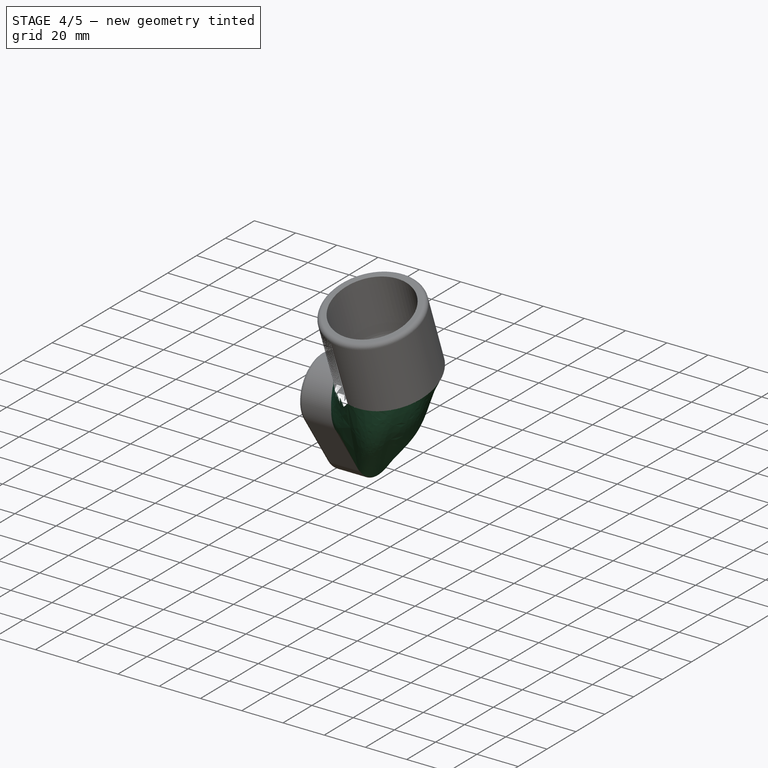
[diagram: stage 4 of 5 — iso view after this stage's code; geometry added in this stage tinted green]
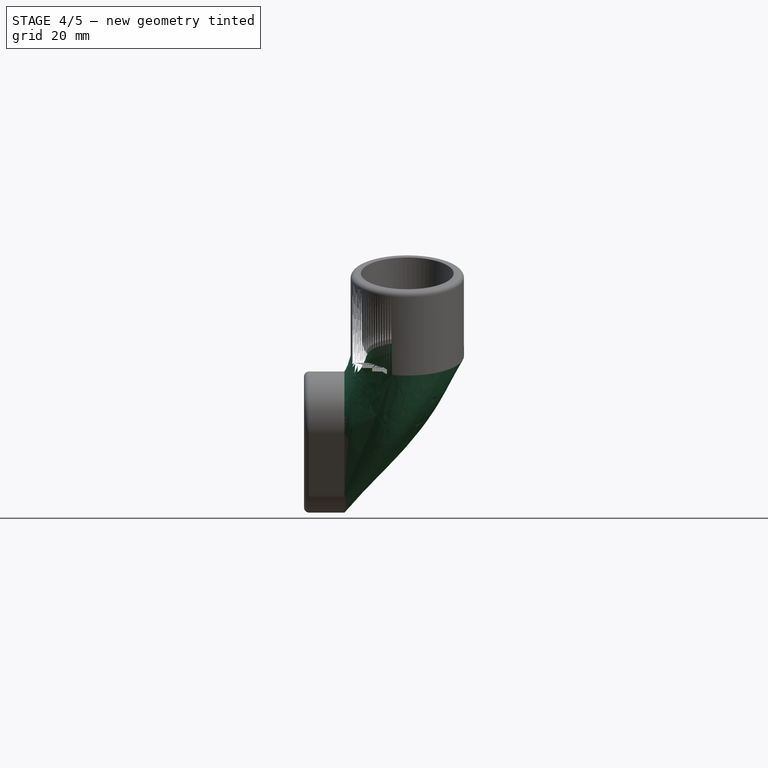
[diagram: stage 4 of 5 — front view after this stage's code; geometry added in this stage tinted green]
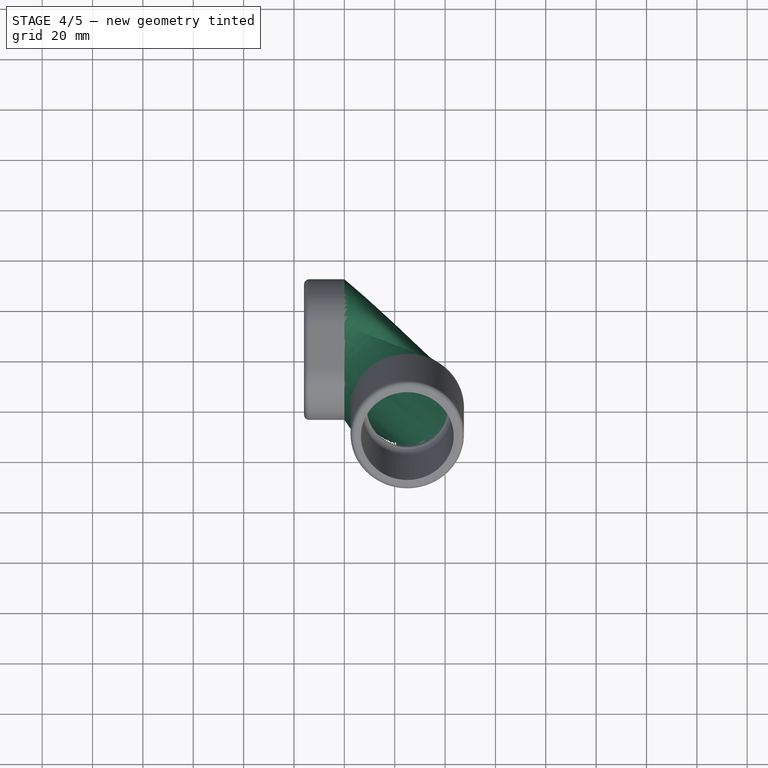
[diagram: stage 4 of 5 — top view after this stage's code; geometry added in this stage tinted green]
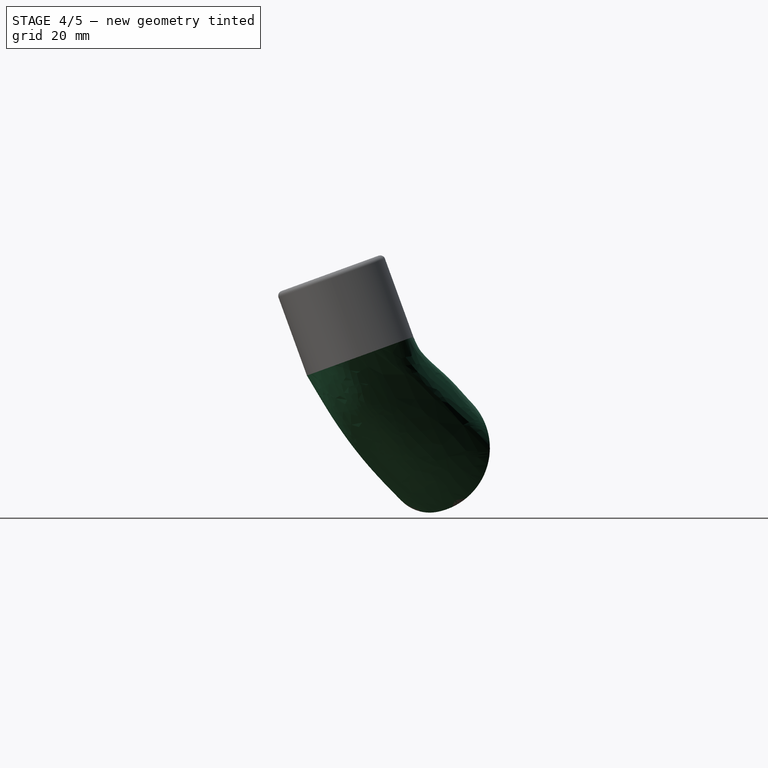
[diagram: stage 4 of 5 — right view after this stage's code; geometry added in this stage tinted green]
FEATURE [Part::Cut] Cut002  label="PortClamp"
  Base = -> Extrude001
  Tool = -> Extrude
FEATURE [Part::Refine] Solid001  label="ShortyV003"
  Source = -> Solid
FEATURE [Part::Fuse] Fusion
  Base = -> Cut002
  Tool = -> Solid001
FEATURE [Part::Fillet] Fillet
  Base = -> Fusion
  Edges = 1 edges r=2: [Edge31]
FEATURE [Part::MultiFuse] Fusion001
  Shapes = -> [Fillet,Fillet001,Solid]
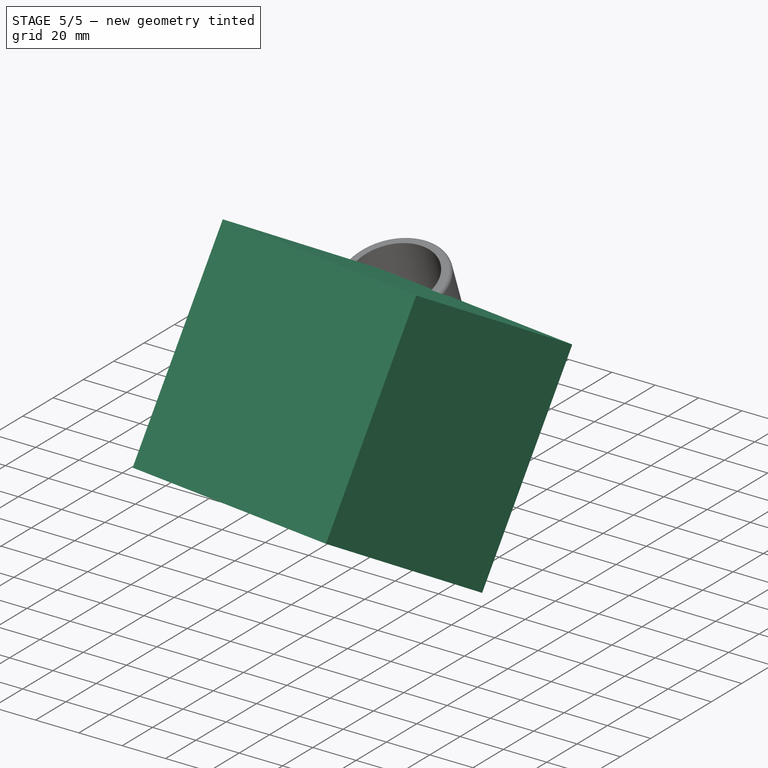
[diagram: stage 5 of 5 — iso view after this stage's code; geometry added in this stage tinted green]
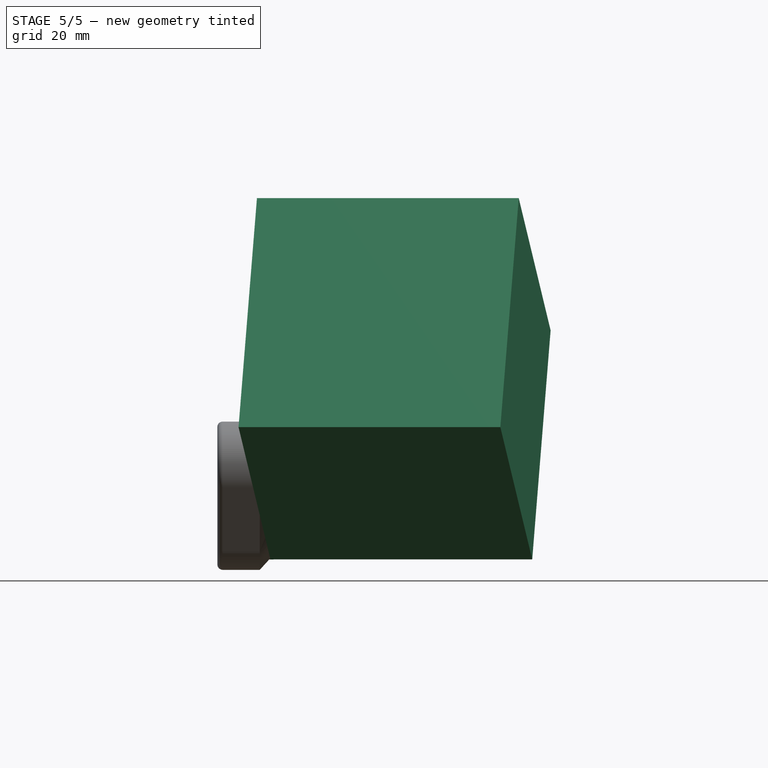
[diagram: stage 5 of 5 — front view after this stage's code; geometry added in this stage tinted green]
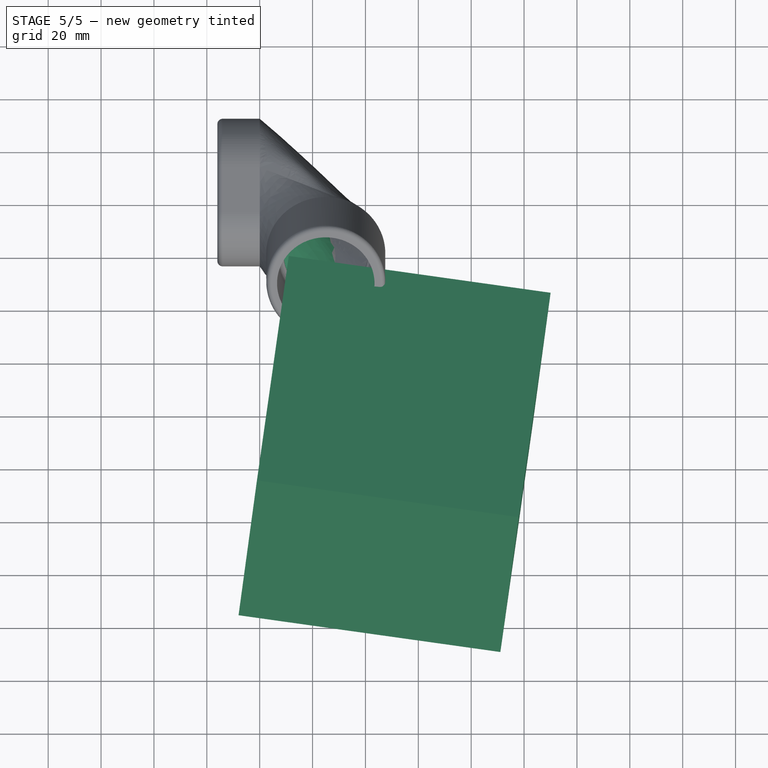
[diagram: stage 5 of 5 — top view after this stage's code; geometry added in this stage tinted green]
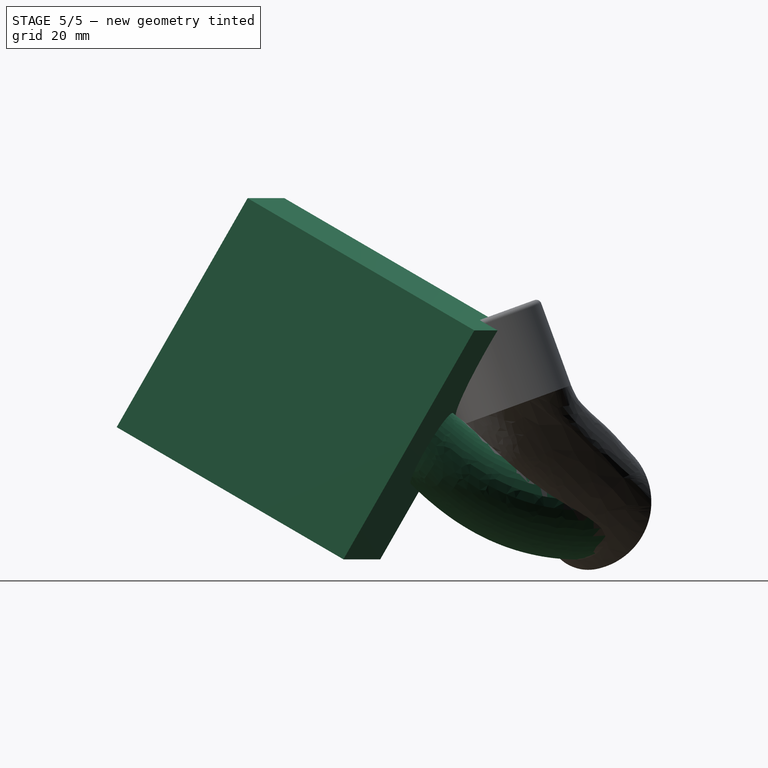
[diagram: stage 5 of 5 — right view after this stage's code; geometry added in this stage tinted green]
FEATURE [Part::Box] Box  label="Cube"
  AttacherType = Attacher::AttachEngine3D
  Height = 100
  Length = 100
  Placement = pos=(-8,-136,50) rot=(-0.965386,0.067506,-0.251937;0.541483rad)
  Width = 100
FEATURE [Part::Cut] Cut001
  Base = -> Cut
  Tool = -> Box
FEATURE [Sketcher::SketchObject] Sketch008
  FullyConstrained = false
  MapMode = 11
  Placement = pos=(41,-35,46) rot=(0.433419,-0.498591,0.750703;1.71694rad)
  sketch-geometry (2):
    g0: Circle CenterX=0 CenterY=0.196706 CenterZ=0 NormalX=0 NormalY=0 NormalZ=1 AngleXU=0 Radius=15.4759
    g1: GeomPoint X=0 Y=0 Z=0
  constraints (2):
    c: PointOnObject(g0,g-2)
    c: Coincident(g1,g-1)
FEATURE [Sketcher::SketchObject] Sketch009  label="--Sketch009"
  FullyConstrained = false
  MapMode = 2
  Placement = pos=(41,-35,46) rot=(0.433419,-0.498591,0.750703;1.71694rad)
  Support = -> [Sketch008]
  sketch-geometry (1):
    g0: LineSegment StartX=-11.436 StartY=-11.1681 StartZ=0 EndX=0 EndY=0 EndZ=0
  constraints (1):
    c: Coincident(g0,g-1)
FEATURE [Sketcher::SketchObject] Sketch010  label="ShortSweep"
  ExternalGeometry = -> [Sketch009,Sketch]
  FullyConstrained = true
  MapMode = 13
  Placement = pos=(13.6667,3.70685,31.3732) rot=(0.851756,-0.406771,-0.330226;1.93163rad)
  Support = -> [Sketch009,Sketch]
  sketch-geometry (5):
    g0: LineSegment StartX=-17.4642 StartY=16.8252 StartZ=0 EndX=-23.6426 EndY=-7.47289 EndZ=0
    g1: LineSegment StartX=-23.6426 StartY=-7.47289 StartZ=0 EndX=-29.8211 EndY=-31.7709 EndZ=0
    g2: ArcOfParabola CenterX=20.0053 CenterY=-2.49995 CenterZ=0 NormalX=0 NormalY=0 NormalZ=1 Focal=39.9848 AngleXU=1.94373 StartAngle=-31.7611 EndAngle=42.4596
    g3: GeomPoint X=5.43698 Y=34.7364 Z=0
    g4: LineSegment StartX=20.0053 StartY=-2.49995 StartZ=0 EndX=5.43698 EndY=34.7364 EndZ=0
  constraints (12):
    c: Coincident(g0,g-4)
    c: Coincident(g1,g0)
    c: Coincident(g1,g-5)
    c: Equal(g1,g0)
    c: Parallel(g1,g0)
    c: InternalAlignment(g3,g2)
    c: Coincident(g3,g4)
    c: Coincident(g2,g4)
    c: Coincident(g2,g0)
    c: Coincident(g2,g-3)
    c: DistanceX(g3) = 5.43698
    c: DistanceY(g3) = 34.7364
FEATURE [Part::Sweep] Sweep002  label="--ShortKnockout"
  Frenet = false
  Sections = -> [Sketch,Sketch008]
  Solid = true
  Spine = -> Sketch010 [Edge1]
  Transition = 1
FEATURE [PartDesign::FeatureBase] BaseFeature
  BaseFeature = -> Fusion001
FEATURE [PartDesign::CoordinateSystem] Local_CS
  AttacherType = Attacher::AttachEngine3D
FEATURE [PartDesign::Body] Body002  label="AnimationExport"
  BaseFeature = -> Fusion001
  Group = -> [BaseFeature,Local_CS]
  Origin = -> Origin002
  Tip = -> BaseFeature
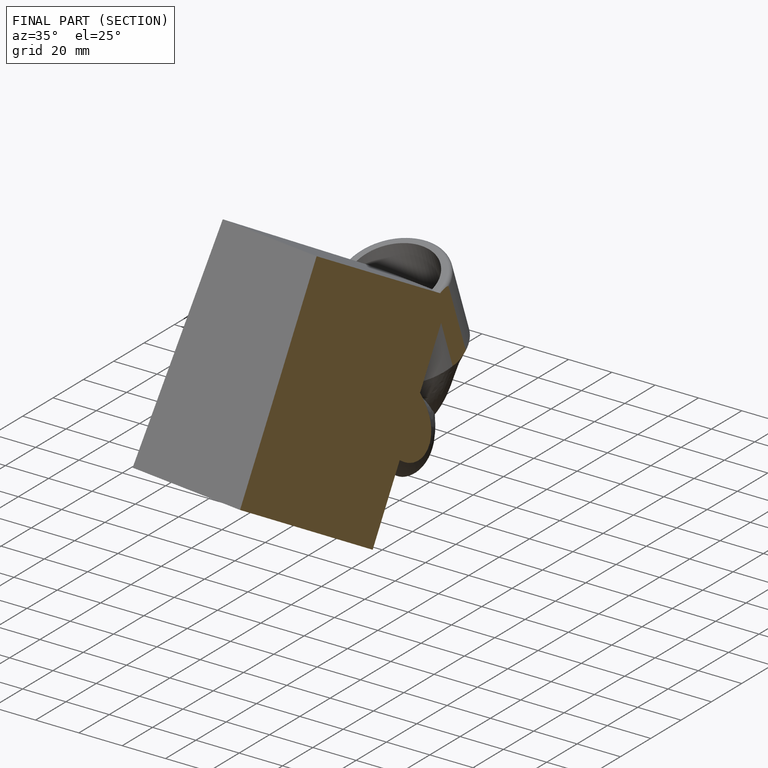
[diagram: finished part — half-section view (interior)]
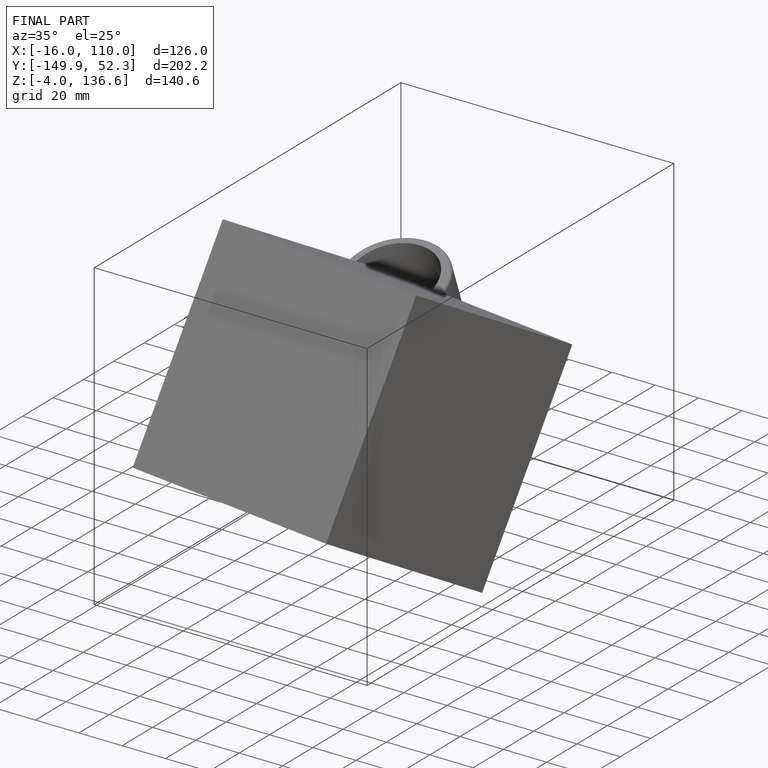
[diagram: finished part — iso view with bounding-box wireframe]
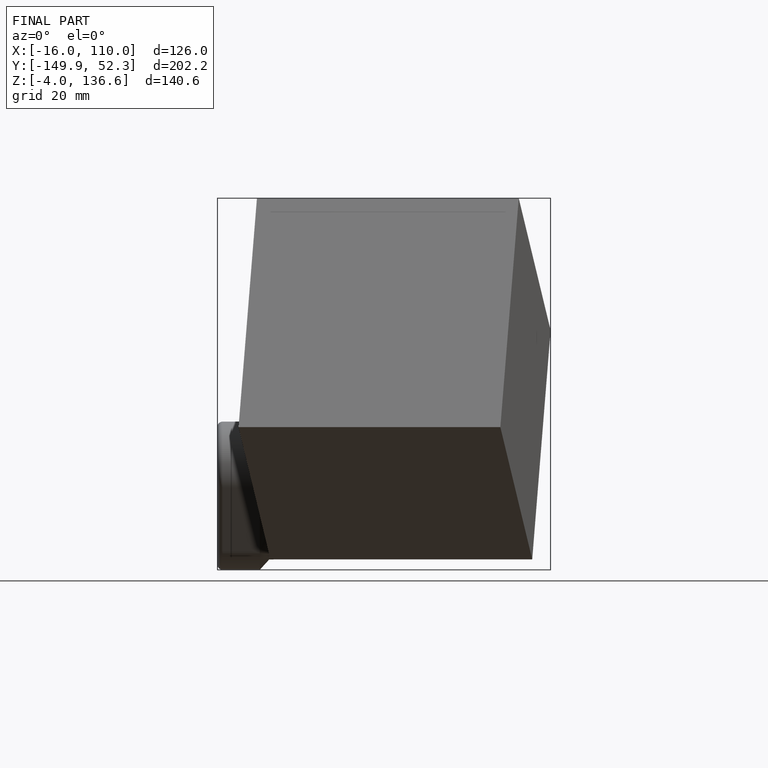
[diagram: finished part — front view with bounding-box wireframe]
